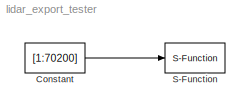
MODEL lidar_export_tester
KIND model
BLOCK [Constant] Constant
  OutDataType = fixdt(1, 16)
  OutDataTypeMode = double
  OutDataTypeStr = double
  OutScaling = 2^0
  Value = [1:70200]
  VectorParams1D = off
BLOCK [S-Function] S-Function
  EnableBusSupport = off
  FunctionName = lidarExport
  Ports = [1]
LINE Constant:1 -> S-Function:1
